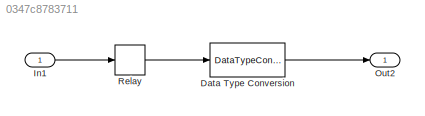
MODEL slx_0347c8783711
KIND model
CONFIG AbsTol = auto
CONFIG EnableMultiTasking = off
CONFIG FixedStep = 1.000000
CONFIG MaxStep = auto
CONFIG MinStep = auto
CONFIG RelTol = 1e-3
CONFIG SampleTimeConstraint = Unconstrained
CONFIG Solver = FixedStepDiscrete
CONFIG SolverName = FixedStepDiscrete
CONFIG StartTime = 0.0
CONFIG StopTime = 10.0
WORKSPACE source: MAT-file member
WORKSPACE MCOS: class17 (value not decoded)
BLOCK [DataTypeConversion] Data Type Conversion
  OutDataTypeStr = int8
  RndMeth = Floor
  SaturateOnIntegerOverflow = off
BLOCK [Inport] In1
  IconDisplay = Port number
  OutDataTypeStr = double
BLOCK [Outport] Out2
  IconDisplay = Port number
BLOCK [Relay] Relay
  InputProcessing = Elements as channels (sample based)
  OffOutputValue = Days.Monday
  OffSwitchValue = 0
  OnOutputValue = Days.Sunday
  OnSwitchValue = 1
  OutDataTypeStr = Enum: Days
LINE Data Type Conversion:1 -> Out2:1
LINE In1:1 -> Relay:1
LINE Relay:1 -> Data Type Conversion:1
